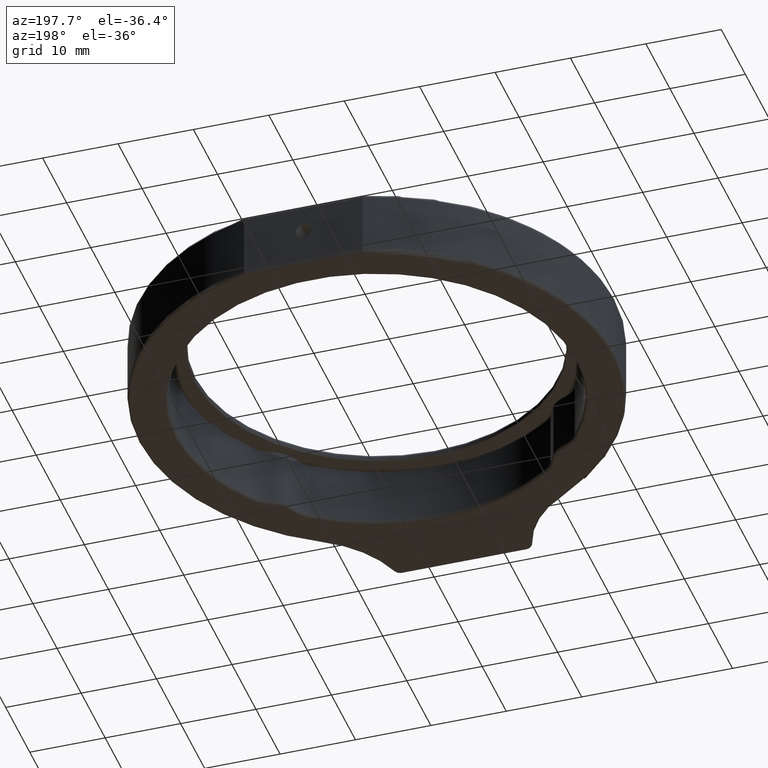
[diagram: clean part render]
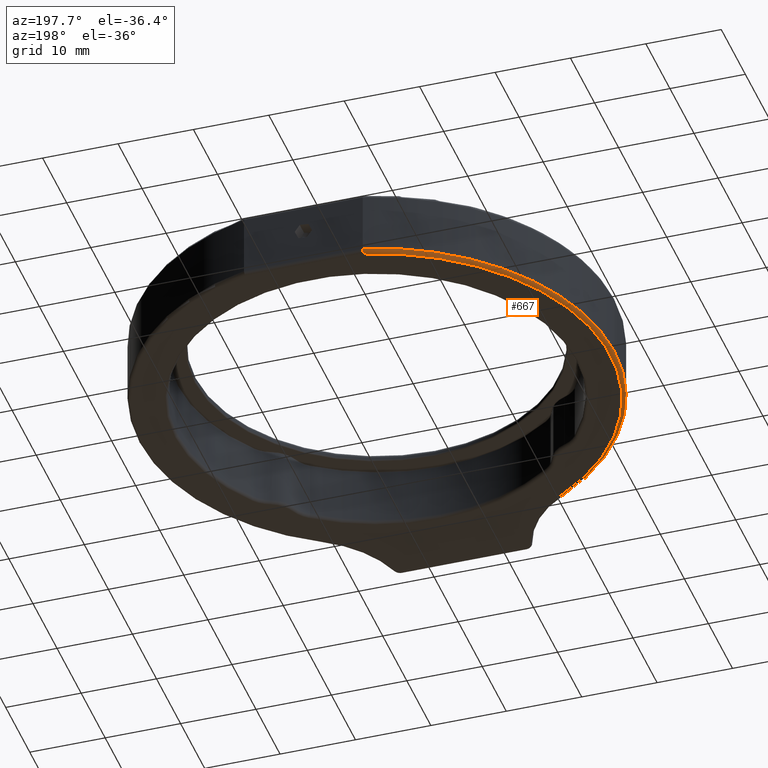
[diagram: same view with one face highlighted and labeled with its STEP entity id]
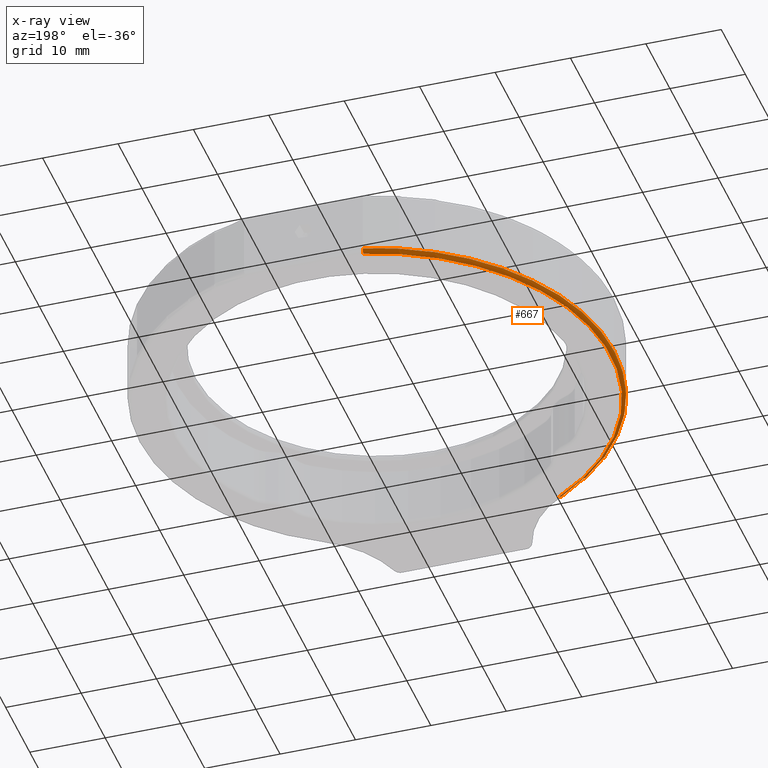
[diagram: x-ray of the same camera — body ghosted, the highlighted face saturated]
A machine part, auxiliary view. The second image highlights one B-rep face of the part: STEP entity #667.
The next image is the same camera in x-ray: the body ghosted, the highlighted face saturated — about 0% of this face is hidden behind the body in this view.
In plain terms, the highlighted toroidal blend (fillet) surface has major radius 31 mm and minor (blend) radius 0.5 mm.
Its self-contained STEP definition (entity closure, byte-faithful):
#103 = CARTESIAN_POINT ( 'NONE',  ( 8.089914455747923200, 36.95884983811465200, 0.5000000000072749600 ) ) ;
#122 = CARTESIAN_POINT ( 'NONE',  ( 0.2540132211835028900, -20.26564745931403500, 7.276297619984717400E-012 ) ) ;
#164 = AXIS2_PLACEMENT_3D ( 'NONE', #1660, #799, #2531 ) ;
#165 = VERTEX_POINT ( 'NONE', #122 ) ;
#174 = CIRCLE ( 'NONE', #2449, 31.50000000000000000 ) ;
#518 = CARTESIAN_POINT ( 'NONE',  ( 15.96392232975974000, 6.458849838114653100, 0.5000000000072767300 ) ) ;
#548 = CARTESIAN_POINT ( 'NONE',  ( 8.153672653853089300, 36.45884983811464500, 7.276297619984717400E-012 ) ) ;
#575 = CARTESIAN_POINT ( 'NONE',  ( 8.089914455747923200, 36.95884983811465200, 0.5000000000072749600 ) ) ;
#595 = TOROIDAL_SURFACE ( 'NONE', #1567, 31.00000000000000000, 0.5000000000000000000 ) ;
#622 = CIRCLE ( 'NONE', #2365, 0.4999999999999997800 ) ;
#667 = ADVANCED_FACE ( 'NONE', ( #2326 ), #595, .T. ) ;
#753 = DIRECTION ( 'NONE',  ( -0.0000000000000000000, 0.0000000000000000000, 1.000000000000000000 ) ) ;
#784 = VERTEX_POINT ( 'NONE', #1642 ) ;
#799 = DIRECTION ( 'NONE',  ( 0.0000000000000000000, -0.0000000000000000000, -1.000000000000000000 ) ) ;
#934 = DIRECTION ( 'NONE',  ( -0.0000000000000000000, 0.0000000000000000000, 1.000000000000000000 ) ) ;
#986 = CARTESIAN_POINT ( 'NONE',  ( 15.96392232975974000, 6.458849838114653100, 0.5000000000072767300 ) ) ;
#994 = DIRECTION ( 'NONE',  ( -0.8620805579815723500, 0.5067712615669727200, 0.0000000000000000000 ) ) ;
#1097 = ORIENTED_EDGE ( 'NONE', *, *, #1211, .T. ) ;
#1121 = CIRCLE ( 'NONE', #164, 31.00000000000000000 ) ;
#1139 = ORIENTED_EDGE ( 'NONE', *, *, #2463, .T. ) ;
#1211 = EDGE_CURVE ( 'NONE', #165, #2687, #622, .T. ) ;
#1222 = CARTESIAN_POINT ( 'NONE',  ( 0.2540132211835028900, -20.26564745931403500, 0.5000000000072762900 ) ) ;
#1272 = ORIENTED_EDGE ( 'NONE', *, *, #1736, .F. ) ;
#1376 = EDGE_LOOP ( 'NONE', ( #1139, #1272, #1097, #2512, #2409 ) ) ;
#1439 = EDGE_CURVE ( 'NONE', #2174, #2405, #2352, .T. ) ;
#1567 = AXIS2_PLACEMENT_3D ( 'NONE', #986, #753, #1802 ) ;
#1602 = CARTESIAN_POINT ( 'NONE',  ( 8.137072863115262700, 36.58850773930073800, 7.275636934285859000E-012 ) ) ;
#1642 = CARTESIAN_POINT ( 'NONE',  ( 8.153672653853089300, 36.45884983811464500, 7.276297619984717400E-012 ) ) ;
#1660 = CARTESIAN_POINT ( 'NONE',  ( 15.96392232975974000, 6.458849838114653100, 7.276297619984717400E-012 ) ) ;
#1736 = EDGE_CURVE ( 'NONE', #165, #784, #1121, .T. ) ;
#1802 = DIRECTION ( 'NONE',  ( 1.000000000000000000, 0.0000000000000000000, 0.0000000000000000000 ) ) ;
#1833 = CARTESIAN_POINT ( 'NONE',  ( 8.096856406214188300, 36.90414387103619700, 0.2378764880585302900 ) ) ;
#1881 = DIRECTION ( 'NONE',  ( -0.5067712615669729400, -0.8620805579815721300, 0.0000000000000000000 ) ) ;
#1914 = CARTESIAN_POINT ( 'NONE',  ( 0.0006275904000166421200, -20.69668773830482100, 0.5000000000072767300 ) ) ;
#2042 = CARTESIAN_POINT ( 'NONE',  ( 8.120366367366916200, 36.71946581592435900, 0.05382198241546858700 ) ) ;
#2104 = EDGE_CURVE ( 'NONE', #2405, #2687, #174, .T. ) ;
#2130 = DIRECTION ( 'NONE',  ( -0.0000000000000000000, 0.0000000000000000000, 1.000000000000000000 ) ) ;
#2151 = CARTESIAN_POINT ( 'NONE',  ( 15.96392232975974000, 6.458849838114653100, 0.5000000000072767300 ) ) ;
#2174 = VERTEX_POINT ( 'NONE', #103 ) ;
#2271 = CARTESIAN_POINT ( 'NONE',  ( 8.089914455747925000, 36.95884983811464500, 0.3674006963429709000 ) ) ;
#2326 = FACE_OUTER_BOUND ( 'NONE', #1376, .T. ) ;
#2352 = CIRCLE ( 'NONE', #2570, 31.50000000000000000 ) ;
#2365 = AXIS2_PLACEMENT_3D ( 'NONE', #1222, #994, #1881 ) ;
#2405 = VERTEX_POINT ( 'NONE', #2702 ) ;
#2409 = ORIENTED_EDGE ( 'NONE', *, *, #1439, .F. ) ;
#2422 = B_SPLINE_CURVE_WITH_KNOTS ( 'NONE', 3,
 ( #575, #2271, #1833, #2042, #1602, #548 ),
 .UNSPECIFIED., .F., .F.,
 ( 4, 2, 4 ),
 ( 0.0000000000000000000, 0.0003921335252398200300, 0.0007842670504796400600 ),
 .UNSPECIFIED. ) ;
#2449 = AXIS2_PLACEMENT_3D ( 'NONE', #518, #934, #2680 ) ;
#2463 = EDGE_CURVE ( 'NONE', #2174, #784, #2422, .T. ) ;
#2512 = ORIENTED_EDGE ( 'NONE', *, *, #2104, .F. ) ;
#2531 = DIRECTION ( 'NONE',  ( 1.000000000000000000, 0.0000000000000000000, 0.0000000000000000000 ) ) ;
#2570 = AXIS2_PLACEMENT_3D ( 'NONE', #2151, #2130, #2786 ) ;
#2680 = DIRECTION ( 'NONE',  ( 1.000000000000000000, 0.0000000000000000000, 0.0000000000000000000 ) ) ;
#2687 = VERTEX_POINT ( 'NONE', #1914 ) ;
#2702 = CARTESIAN_POINT ( 'NONE',  ( -15.53607767024026200, 6.458849838114653100, 0.5000000000072767300 ) ) ;
#2786 = DIRECTION ( 'NONE',  ( 1.000000000000000000, 0.0000000000000000000, 0.0000000000000000000 ) ) ;